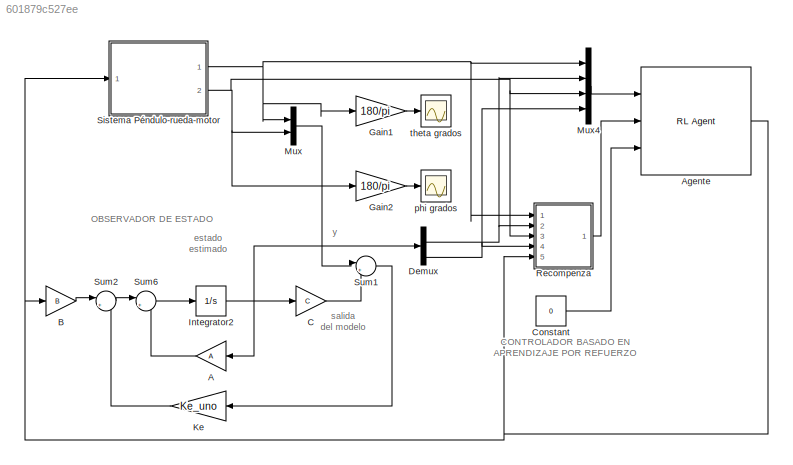
MODEL slx_601879c527ee
KIND model
CONFIG AbsTol = auto
CONFIG EnableMultiTasking = on
CONFIG FixedStep = auto
CONFIG MaxStep = auto
CONFIG MinStep = auto
CONFIG RelTol = 1e-3
CONFIG SampleTimeConstraint = Unconstrained
CONFIG SolverName = ode45
CONFIG StartTime = 0.0
CONFIG StopTime = 10.0
BLOCK [Gain] A
  Gain = A
  Multiplication = Matrix(K*u)
BLOCK [Reference] Agente   REF=rllib/RL Agent
  Ports = [3, 1]
  SourceBlock = rllib/RL Agent
  SourceProductBaseCode = RL
  SourceType = RL Agent
BLOCK [Gain] B
  Gain = B
  Multiplication = Matrix(K*u)
BLOCK [Gain] C
  Gain = C
  Multiplication = Matrix(K*u)
BLOCK [Constant] Constant
  Value = 0
BLOCK [Demux] Demux
  Ports = [1, 4]
BLOCK [Gain] Gain1
  Gain = 180/pi
BLOCK [Gain] Gain2
  Gain = 180/pi
BLOCK [Integrator] Integrator2
  Ports = [1, 1]
BLOCK [Gain] Ke
  Gain = Ke_uno
  Multiplication = Matrix(K*u)
BLOCK [Mux] Mux
  DisplayOption = bar
  Inputs = 2
  Ports = [2, 1]
BLOCK [Mux] Mux4
  DisplayOption = bar
  Ports = [4, 1]
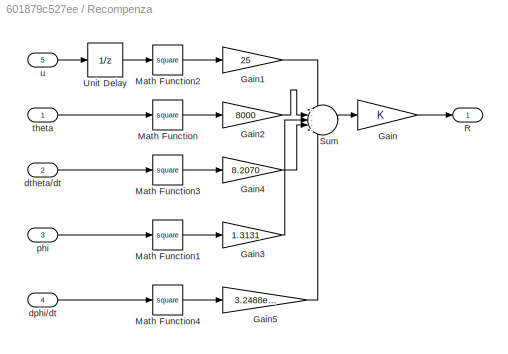
BLOCK [SubSystem] Recompenza
  Ports = [5, 1]
  RequestExecContextInheritance = off
BLOCK [Gain] Recompenza/Gain
BLOCK [Gain] Recompenza/Gain1
  Gain = 25
BLOCK [Gain] Recompenza/Gain2
  Gain = 8000
BLOCK [Gain] Recompenza/Gain3
  Gain = 1.3131
BLOCK [Gain] Recompenza/Gain4
  Gain = 8.2070
BLOCK [Gain] Recompenza/Gain5
  Gain = 3.2488e-4
BLOCK [Math] Recompenza/Math Function
  Operator = square
  Ports = [1, 1]
  SignedPower = on
BLOCK [Math] Recompenza/Math Function1
  Operator = square
  Ports = [1, 1]
  SignedPower = on
BLOCK [Math] Recompenza/Math Function2
  Operator = square
  Ports = [1, 1]
  SignedPower = on
BLOCK [Math] Recompenza/Math Function3
  Operator = square
  Ports = [1, 1]
  SignedPower = on
BLOCK [Math] Recompenza/Math Function4
  Operator = square
  Ports = [1, 1]
  SignedPower = on
BLOCK [Outport] Recompenza/R
  VectorParamsAs1DForOutWhenUnconnected = off
BLOCK [Sum] Recompenza/Sum
  Inputs = -----
  Ports = [5, 1]
BLOCK [UnitDelay] Recompenza/Unit Delay
  HasFrameUpgradeWarning = on
  SampleTime = 0.01
BLOCK [Inport] Recompenza/dphi//dt
  Port = 4
BLOCK [Inport] Recompenza/dtheta//dt
  Port = 2
BLOCK [Inport] Recompenza/phi
  Port = 3
BLOCK [Inport] Recompenza/theta
BLOCK [Inport] Recompenza/u
  Port = 5
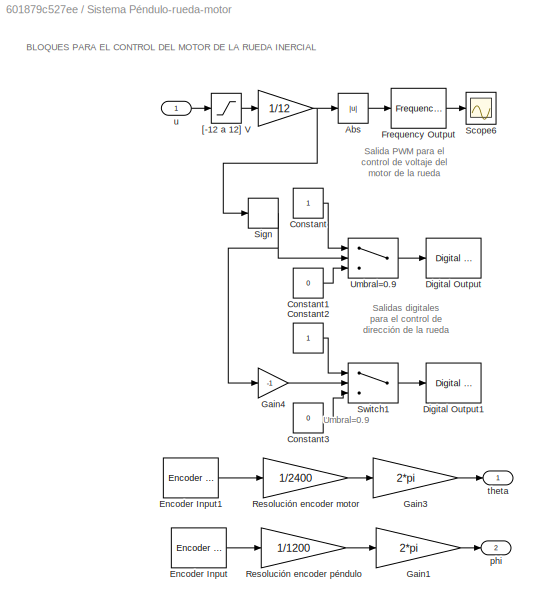
BLOCK [SubSystem] Sistema Péndulo-rueda-motor
  Ports = [1, 2]
  RequestExecContextInheritance = off
BLOCK [Gain] Sistema Péndulo-rueda-motor/   
  Gain = 1/12
BLOCK [Gain] Sistema Péndulo-rueda-motor/      Resolución encoder péndulo
  Gain = 1/1200
BLOCK [Abs] Sistema Péndulo-rueda-motor/Abs
  SaturateOnIntegerOverflow = off
BLOCK [Constant] Sistema Péndulo-rueda-motor/Constant
BLOCK [Constant] Sistema Péndulo-rueda-motor/Constant1
  Value = 0
BLOCK [Constant] Sistema Péndulo-rueda-motor/Constant2
BLOCK [Constant] Sistema Péndulo-rueda-motor/Constant3
  Value = 0
BLOCK [Reference] Sistema Péndulo-rueda-motor/Digital Output  REF=sldrtlib/Digital Output
  AttributesFormatString = National Instruments\nPCIe-6321 [auto]
  Ports = [1]
  SourceBlock = sldrtlib/Digital Output
  SourceProductBaseCode = WT
  SourceType = Simulink Desktop Real-Time Digital Output
BLOCK [Reference] Sistema Péndulo-rueda-motor/Digital Output1  REF=sldrtlib/Digital Output
  AttributesFormatString = National Instruments\nPCIe-6321 [auto]
  Ports = [1]
  SourceBlock = sldrtlib/Digital Output
  SourceProductBaseCode = WT
  SourceType = Simulink Desktop Real-Time Digital Output
BLOCK [Reference] Sistema Péndulo-rueda-motor/Encoder Input  REF=sldrtlib/Encoder Input
  AttributesFormatString = National Instruments\nPCIe-6321 [auto]
  Ports = [0, 1]
  SourceBlock = sldrtlib/Encoder Input
  SourceProductBaseCode = WT
  SourceType = Simulink Desktop Real-Time Encoder Input
BLOCK [Reference] Sistema Péndulo-rueda-motor/Encoder Input1  REF=sldrtlib/Encoder Input
  AttributesFormatString = National Instruments\nPCIe-6321 [auto]
  Ports = [0, 1]
  SourceBlock = sldrtlib/Encoder Input
  SourceProductBaseCode = WT
  SourceType = Simulink Desktop Real-Time Encoder Input
BLOCK [Reference] Sistema Péndulo-rueda-motor/Frequency Output  REF=sldrtlib/Frequency Output
  AttributesFormatString = National Instruments\nPCIe-6321 [auto]
  Ports = [1, 1]
  SourceBlock = sldrtlib/Frequency Output
  SourceProductBaseCode = WT
  SourceType = Simulink Desktop Real-Time Frequency Output
BLOCK [Gain] Sistema Péndulo-rueda-motor/Gain1
  Gain = 2*pi
BLOCK [Gain] Sistema Péndulo-rueda-motor/Gain3
  Gain = 2*pi
BLOCK [Gain] Sistema Péndulo-rueda-motor/Gain4
  Gain = -1
BLOCK [Gain] Sistema Péndulo-rueda-motor/Resolución encoder motor
  Gain = 1/2400
BLOCK [Scope] Sistema Péndulo-rueda-motor/Scope6
  Floating = off
  NumInputPorts = 1
  Ports = [1]
  ScopeSpecificationString = Simulink.scopes.TimeScopeBlockCfg('CurrentConfiguration', extmgr.ConfigurationSet(extmgr.Configuration('Core','General UI',true),extmgr.Configuration('Core','Source UI',true),extmgr.Configuration('Sources','WiredSimulink',true,'DataLoggingVariableName','ScopeData1'),extmgr.Configuration('Visuals','Time Domain',true,'SerializedDisplays',{struct('MinYLimReal','-0.875','MaxYLimReal','17.875','YLabelR...<+1419ch>
BLOCK [Signum] Sistema Péndulo-rueda-motor/Sign
BLOCK [Switch] Sistema Péndulo-rueda-motor/Switch1
  InputSameDT = off
  SaturateOnIntegerOverflow = off
  Threshold = 0.9
BLOCK [Switch] Sistema Péndulo-rueda-motor/Umbral=0.9
  InputSameDT = off
  SaturateOnIntegerOverflow = off
  Threshold = 0.9
BLOCK [Saturate] Sistema Péndulo-rueda-motor/[-12 a 12] V
  LowerLimit = -12
  UpperLimit = 12
BLOCK [Outport] Sistema Péndulo-rueda-motor/phi
  Port = 2
BLOCK [Outport] Sistema Péndulo-rueda-motor/theta
BLOCK [Inport] Sistema Péndulo-rueda-motor/u
BLOCK [Sum] Sum1
  Inputs = |+-
  NameLocation = top
  Ports = [2, 1]
BLOCK [Sum] Sum2
  Inputs = |++
  Ports = [2, 1]
BLOCK [Sum] Sum6
  Inputs = |++
  Ports = [2, 1]
BLOCK [Scope] phi grados
  Floating = off
  NumInputPorts = 1
  Ports = [1]
  ScopeSpecificationString = Simulink.scopes.TimeScopeBlockCfg('CurrentConfiguration', extmgr.ConfigurationSet(extmgr.Configuration('Core','General UI',true),extmgr.Configuration('Core','Source UI',true),extmgr.Configuration('Sources','WiredSimulink',true,'DataLoggingVariableName','ScopeData2'),extmgr.Configuration('Visuals','Time Domain',true),extmgr.Configuration('Tools','Plot Navigation',true),extmgr.Configuration('Tools',...<+40ch>
BLOCK [Scope] theta grados
  Floating = off
  NumInputPorts = 1
  Ports = [1]
  ScopeSpecificationString = Simulink.scopes.TimeScopeBlockCfg('CurrentConfiguration', extmgr.ConfigurationSet(extmgr.Configuration('Core','General UI',true),extmgr.Configuration('Core','Source UI',true),extmgr.Configuration('Sources','WiredSimulink',true,'DataLoggingVariableName','ScopeData1'),extmgr.Configuration('Visuals','Time Domain',true),extmgr.Configuration('Tools','Plot Navigation',true),extmgr.Configuration('Tools',...<+40ch>
ANNOTATION (root): salida del modelo
ANNOTATION (root): estado estimado
ANNOTATION (root): CONTROLADOR BASADO EN APRENDIZAJE POR REFUERZO
ANNOTATION (root): OBSERVADOR DE ESTADO
ANNOTATION (root): y
ANNOTATION Sistema Péndulo-rueda-motor: Salidas digitales para el control de dirección de la rueda
ANNOTATION Sistema Péndulo-rueda-motor: Salida PWM para el control de voltaje del motor de la rueda
ANNOTATION Sistema Péndulo-rueda-motor: BLOQUES PARA EL CONTROL DEL MOTOR DE LA RUEDA INERCIAL
ANNOTATION Sistema Péndulo-rueda-motor: Umbral=0.9
LINE A:1 -> Sum6:2
NET Agente :1 -> B:1, Recompenza:5, Sistema Péndulo-rueda-motor:1
LINE B:1 -> Sum2:1
LINE C:1 -> Sum1:2
LINE Constant:1 -> Agente :3
NET Demux:2 -> Mux4:2, Recompenza:2
NET Demux:4 -> Mux4:4, Recompenza:4
LINE Gain1:1 -> theta grados:1
LINE Gain2:1 -> phi grados:1
NET Integrator2:1 -> A:1, C:1, Demux:1
LINE Ke:1 -> Sum2:2
LINE Mux4:1 -> Agente :1
LINE Mux:1 -> Sum1:1
LINE Recompenza/Gain1:1 -> Recompenza/Sum:1
LINE Recompenza/Gain2:1 -> Recompenza/Sum:2
LINE Recompenza/Gain3:1 -> Recompenza/Sum:3
LINE Recompenza/Gain4:1 -> Recompenza/Sum:4
LINE Recompenza/Gain5:1 -> Recompenza/Sum:5
LINE Recompenza/Gain:1 -> Recompenza/R:1
LINE Recompenza/Math Function1:1 -> Recompenza/Gain3:1
LINE Recompenza/Math Function2:1 -> Recompenza/Gain1:1
LINE Recompenza/Math Function3:1 -> Recompenza/Gain4:1
LINE Recompenza/Math Function4:1 -> Recompenza/Gain5:1
LINE Recompenza/Math Function:1 -> Recompenza/Gain2:1
LINE Recompenza/Sum:1 -> Recompenza/Gain:1
LINE Recompenza/Unit Delay:1 -> Recompenza/Math Function2:1
LINE Recompenza/dphi//dt:1 -> Recompenza/Math Function4:1
LINE Recompenza/dtheta//dt:1 -> Recompenza/Math Function3:1
LINE Recompenza/phi:1 -> Recompenza/Math Function1:1
LINE Recompenza/theta:1 -> Recompenza/Math Function:1
LINE Recompenza/u:1 -> Recompenza/Unit Delay:1
LINE Recompenza:1 -> Agente :2
LINE Sistema Péndulo-rueda-motor/      Resolución encoder péndulo:1 -> Sistema Péndulo-rueda-motor/Gain1:1
NET Sistema Péndulo-rueda-motor/   :1 -> Sistema Péndulo-rueda-motor/Abs:1, Sistema Péndulo-rueda-motor/Sign:1
LINE Sistema Péndulo-rueda-motor/Abs:1 -> Sistema Péndulo-rueda-motor/Frequency Output:1
LINE Sistema Péndulo-rueda-motor/Constant1:1 -> Sistema Péndulo-rueda-motor/Umbral=0.9:3
LINE Sistema Péndulo-rueda-motor/Constant2:1 -> Sistema Péndulo-rueda-motor/Switch1:1
LINE Sistema Péndulo-rueda-motor/Constant3:1 -> Sistema Péndulo-rueda-motor/Switch1:3
LINE Sistema Péndulo-rueda-motor/Constant:1 -> Sistema Péndulo-rueda-motor/Umbral=0.9:1
LINE Sistema Péndulo-rueda-motor/Encoder Input1:1 -> Sistema Péndulo-rueda-motor/Resolución encoder motor:1
LINE Sistema Péndulo-rueda-motor/Encoder Input:1 -> Sistema Péndulo-rueda-motor/      Resolución encoder péndulo:1
LINE Sistema Péndulo-rueda-motor/Frequency Output:1 -> Sistema Péndulo-rueda-motor/Scope6:1
LINE Sistema Péndulo-rueda-motor/Gain1:1 -> Sistema Péndulo-rueda-motor/phi:1
LINE Sistema Péndulo-rueda-motor/Gain3:1 -> Sistema Péndulo-rueda-motor/theta:1
LINE Sistema Péndulo-rueda-motor/Gain4:1 -> Sistema Péndulo-rueda-motor/Switch1:2
LINE Sistema Péndulo-rueda-motor/Resolución encoder motor:1 -> Sistema Péndulo-rueda-motor/Gain3:1
NET Sistema Péndulo-rueda-motor/Sign:1 -> Sistema Péndulo-rueda-motor/Gain4:1, Sistema Péndulo-rueda-motor/Umbral=0.9:2
LINE Sistema Péndulo-rueda-motor/Switch1:1 -> Sistema Péndulo-rueda-motor/Digital Output1:1
LINE Sistema Péndulo-rueda-motor/Umbral=0.9:1 -> Sistema Péndulo-rueda-motor/Digital Output:1
LINE Sistema Péndulo-rueda-motor/[-12 a 12] V:1 -> Sistema Péndulo-rueda-motor/   :1
LINE Sistema Péndulo-rueda-motor/u:1 -> Sistema Péndulo-rueda-motor/[-12 a 12] V:1
NET Sistema Péndulo-rueda-motor:1 -> Gain1:1, Mux4:1, Mux:1, Recompenza:1
NET Sistema Péndulo-rueda-motor:2 -> Gain2:1, Mux4:3, Mux:2, Recompenza:3
LINE Sum1:1 -> Ke:1
LINE Sum2:1 -> Sum6:1
LINE Sum6:1 -> Integrator2:1
note: NET lines group one-source signal fan-out (src -> all destinations, sorted); 1:1 wires keep LINE
